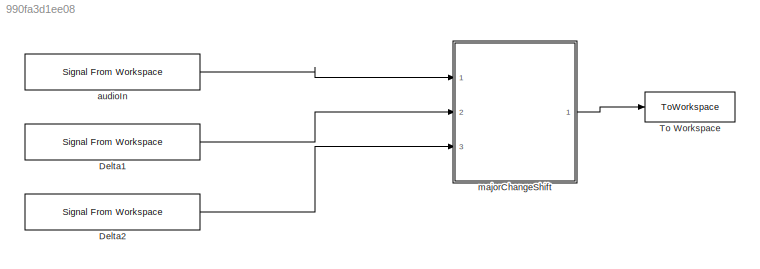
MODEL slx_990fa3d1ee08
KIND model
CONFIG AbsTol = auto
CONFIG EnableMultiTasking = off
CONFIG FixedStep = auto
CONFIG InitFcn = initCallback
CONFIG MaxStep = auto
CONFIG MinStep = auto
CONFIG PostLoadFcn = postLoadCallback
CONFIG RelTol = 1e-3
CONFIG SampleTimeConstraint = Unconstrained
CONFIG SolverName = VariableStepAuto
CONFIG StartTime = 0.0
CONFIG StopFcn = stopCallback
CONFIG StopTime = 10.0
BLOCK [Reference] Delta1  REF=dspsrcs4/Signal From
Workspace
  Ports = [0, 1]
  SourceBlock = dspsrcs4/Signal From\nWorkspace
  SourceProductBaseCode = DS
  SourceType = Signal From Workspace
BLOCK [Reference] Delta2  REF=dspsrcs4/Signal From
Workspace
  Ports = [0, 1]
  SourceBlock = dspsrcs4/Signal From\nWorkspace
  SourceProductBaseCode = DS
  SourceType = Signal From Workspace
BLOCK [ToWorkspace] To Workspace
  FixptAsFi = on
  MaxDataPoints = inf
  Ports = [1]
  SampleTime = modelParams.audio.samplePeriod
  Save2DSignal = 2-D array (concatenate along first dimension)
  VariableName = AudioOut
BLOCK [Reference] audioIn  REF=dspsrcs4/Signal From
Workspace
  Ports = [0, 1]
  SourceBlock = dspsrcs4/Signal From\nWorkspace
  SourceProductBaseCode = DS
  SourceType = Signal From Workspace
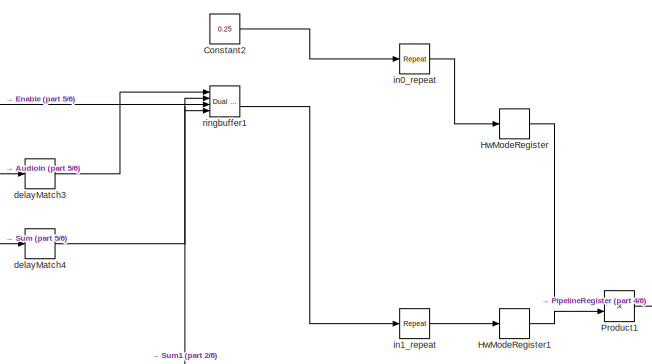
[diagram: majorChangeShift - part 1/6, top center region]
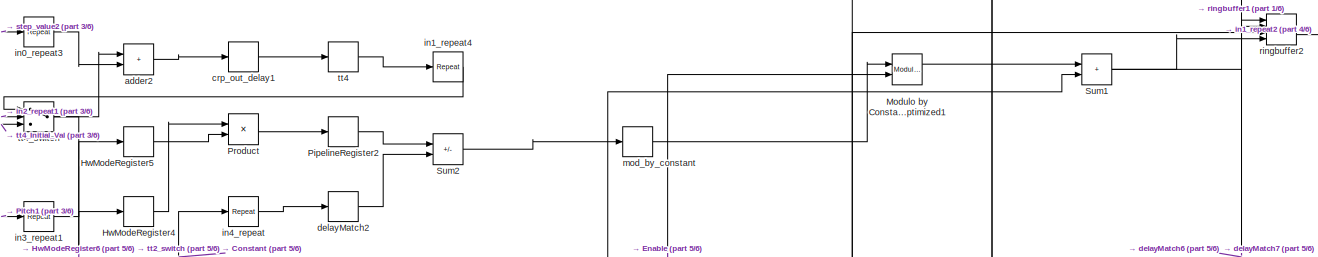
[diagram: majorChangeShift - part 2/6, central region]
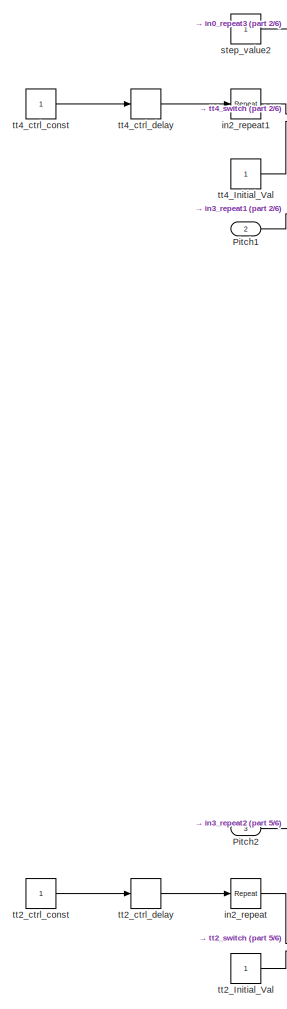
[diagram: majorChangeShift - part 3/6, middle left region]
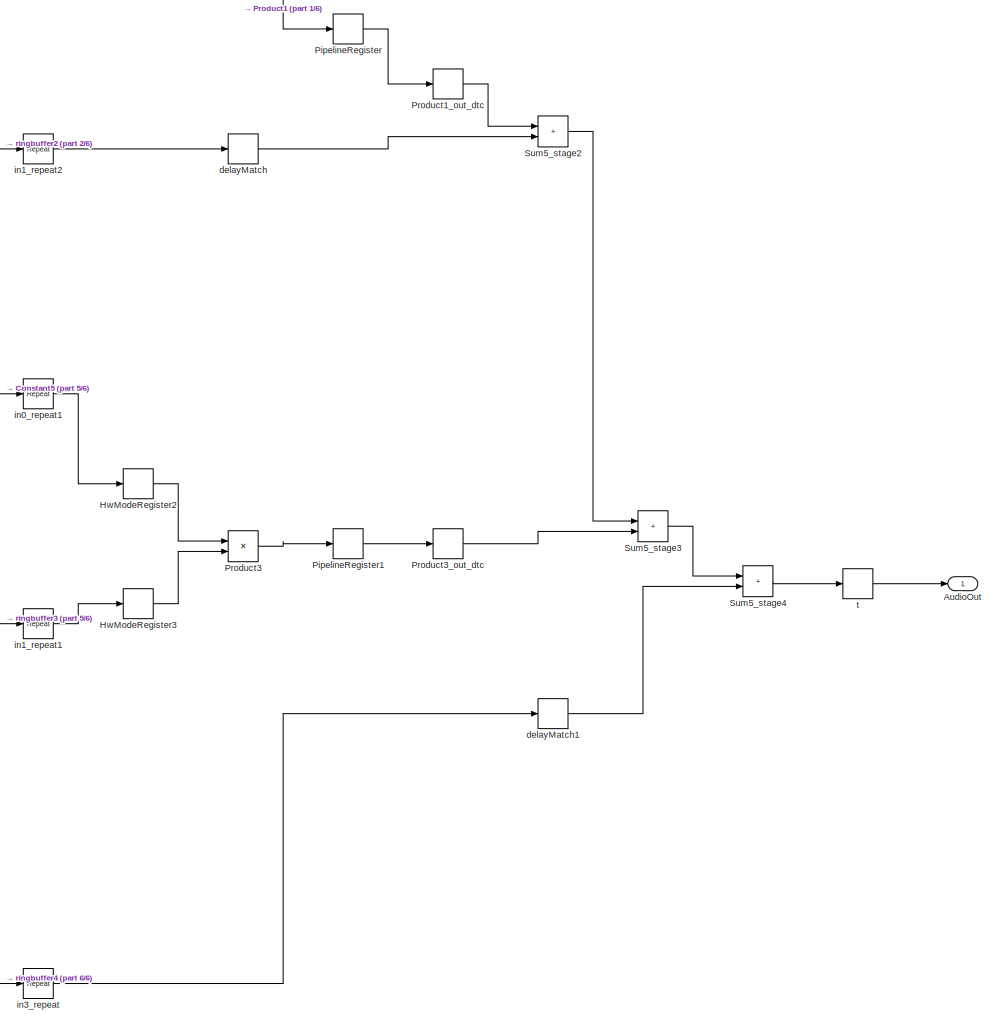
[diagram: majorChangeShift - part 4/6, middle right region]
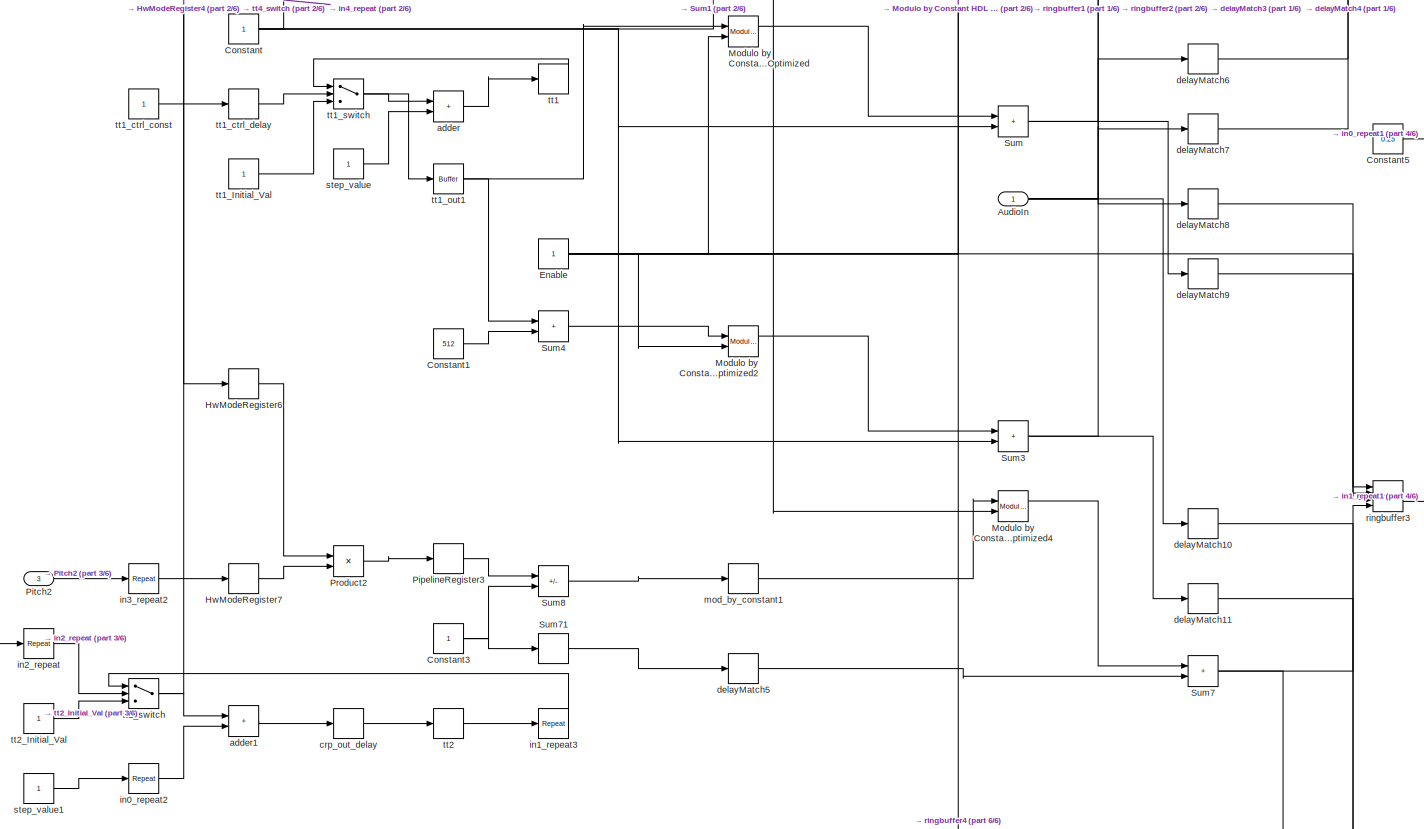
[diagram: majorChangeShift - part 5/6, bottom center region]
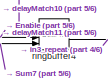
[diagram: majorChangeShift - part 6/6, bottom center region]
BLOCK [SubSystem] majorChangeShift
  Ports = [3, 1]
  RequestExecContextInheritance = off
BLOCK [Inport] majorChangeShift/AudioIn
  OutDataTypeStr = fixdt(1, 24, 23)
  PortDimensions = 1
  SampleTime = 2.08333333333333e-05
BLOCK [Outport] majorChangeShift/AudioOut
  SampleTime = 2.08333333333333e-05
BLOCK [Constant] majorChangeShift/Constant
  OutDataTypeStr = uint32
  SampleTime = 2.08333333333333e-05
BLOCK [Constant] majorChangeShift/Constant1
  OutDataTypeStr = uint32
  SampleTime = 2.08333333333333e-05
  Value = 512
BLOCK [Constant] majorChangeShift/Constant2
  OutDataTypeStr = fixdt(0, 24, 23)
  SampleTime = 2.08333333333333e-05
  Value = 0.25
BLOCK [Constant] majorChangeShift/Constant3
  OutDataTypeStr = uint32
  SampleTime = 1.01725260416667e-08
BLOCK [Constant] majorChangeShift/Constant5
  OutDataTypeStr = fixdt(0, 24, 23)
  SampleTime = 2.08333333333333e-05
  Value = 0.25
BLOCK [Constant] majorChangeShift/Enable
  OutDataTypeStr = boolean
  SampleTime = 2.08333333333333e-05
BLOCK [Delay] majorChangeShift/HwModeRegister
  DelayLength = double(1)
  InitialCondition = 0
  InputPortMap = u0
  Ports = [1, 1]
  SampleTime = 1.01725260416667e-08
BLOCK [Delay] majorChangeShift/HwModeRegister1
  DelayLength = double(1)
  InitialCondition = 0
  InputPortMap = u0
  Ports = [1, 1]
  SampleTime = 1.01725260416667e-08
BLOCK [Delay] majorChangeShift/HwModeRegister2
  DelayLength = double(1)
  InitialCondition = 0
  InputPortMap = u0
  Ports = [1, 1]
  SampleTime = 1.01725260416667e-08
BLOCK [Delay] majorChangeShift/HwModeRegister3
  DelayLength = double(1)
  InitialCondition = 0
  InputPortMap = u0
  Ports = [1, 1]
  SampleTime = 1.01725260416667e-08
BLOCK [Delay] majorChangeShift/HwModeRegister4
  DelayLength = double(1)
  InitialCondition = 0
  InputPortMap = u0
  Ports = [1, 1]
  SampleTime = 1.01725260416667e-08
BLOCK [Delay] majorChangeShift/HwModeRegister5
  DelayLength = double(1)
  InitialCondition = 0
  InputPortMap = u0
  Ports = [1, 1]
  SampleTime = 1.01725260416667e-08
BLOCK [Delay] majorChangeShift/HwModeRegister6
  DelayLength = double(1)
  InitialCondition = 0
  InputPortMap = u0
  Ports = [1, 1]
  SampleTime = 1.01725260416667e-08
BLOCK [Delay] majorChangeShift/HwModeRegister7
  DelayLength = double(1)
  InitialCondition = 0
  InputPortMap = u0
  Ports = [1, 1]
  SampleTime = 1.01725260416667e-08
BLOCK [Reference] majorChangeShift/Modulo by Constant HDL Optimized  REF=embmathops/Modulo by Constant
HDL Optimized
  Ports = [2, 2]
  SourceBlock = embmathops/Modulo by Constant\nHDL Optimized
  SourceProductBaseCode = SL
  SourceType = fixed.system.internal.modbyconstant_hdl
BLOCK [Reference] majorChangeShift/Modulo by Constant HDL Optimized1  REF=embmathops/Modulo by Constant
HDL Optimized
  Ports = [2, 2]
  SourceBlock = embmathops/Modulo by Constant\nHDL Optimized
  SourceProductBaseCode = SL
  SourceType = fixed.system.internal.modbyconstant_hdl
BLOCK [Reference] majorChangeShift/Modulo by Constant HDL Optimized2  REF=embmathops/Modulo by Constant
HDL Optimized
  Ports = [2, 2]
  SourceBlock = embmathops/Modulo by Constant\nHDL Optimized
  SourceProductBaseCode = SL
  SourceType = fixed.system.internal.modbyconstant_hdl
BLOCK [Reference] majorChangeShift/Modulo by Constant HDL Optimized4  REF=embmathops/Modulo by Constant
HDL Optimized
  Ports = [2, 2]
  SourceBlock = embmathops/Modulo by Constant\nHDL Optimized
  SourceProductBaseCode = SL
  SourceType = fixed.system.internal.modbyconstant_hdl
BLOCK [Delay] majorChangeShift/PipelineRegister
  DelayLength = double(1)
  InitialCondition = 0
  InputPortMap = u0
  Ports = [1, 1]
  SampleTime = 1.01725260416667e-08
BLOCK [Delay] majorChangeShift/PipelineRegister1
  DelayLength = double(1)
  InitialCondition = 0
  InputPortMap = u0
  Ports = [1, 1]
  SampleTime = 1.01725260416667e-08
BLOCK [Delay] majorChangeShift/PipelineRegister2
  DelayLength = double(1)
  InitialCondition = 0
  InputPortMap = u0
  Ports = [1, 1]
  SampleTime = 1.01725260416667e-08
BLOCK [Delay] majorChangeShift/PipelineRegister3
  DelayLength = double(1)
  InitialCondition = 0
  InputPortMap = u0
  Ports = [1, 1]
  SampleTime = 1.01725260416667e-08
BLOCK [Inport] majorChangeShift/Pitch1
  OutDataTypeStr = fixdt(1, 24, 23)
  Port = 2
  PortDimensions = 1
  SampleTime = 2.08333333333333e-05
BLOCK [Inport] majorChangeShift/Pitch2
  OutDataTypeStr = fixdt(1, 24, 23)
  Port = 3
  PortDimensions = 1
  SampleTime = 2.08333333333333e-05
BLOCK [Product] majorChangeShift/Product
  Inputs = **
  OutDataTypeStr = fixdt(1, 56, 23)
  Ports = [2, 1]
  SampleTime = 1.01725260416667e-08
BLOCK [Product] majorChangeShift/Product1
  Inputs = **
  OutDataTypeStr = fixdt(1, 48, 46)
  Ports = [2, 1]
  SampleTime = 1.01725260416667e-08
BLOCK [DataTypeConversion] majorChangeShift/Product1_out_dtc
  OutDataTypeStr = fixdt(1, 24, 23)
  RndMeth = Floor
  SampleTime = 1.01725260416667e-08
BLOCK [Product] majorChangeShift/Product2
  Inputs = **
  OutDataTypeStr = fixdt(1, 56, 23)
  Ports = [2, 1]
  SampleTime = 1.01725260416667e-08
BLOCK [Product] majorChangeShift/Product3
  Inputs = **
  OutDataTypeStr = fixdt(1, 48, 46)
  Ports = [2, 1]
  SampleTime = 1.01725260416667e-08
BLOCK [DataTypeConversion] majorChangeShift/Product3_out_dtc
  OutDataTypeStr = fixdt(1, 24, 23)
  RndMeth = Floor
  SampleTime = 1.01725260416667e-08
BLOCK [Sum] majorChangeShift/Sum
  AccumDataTypeStr = fixdt(0, 33, 0)
  IconShape = rectangular
  OutDataTypeStr = fixdt(0, 10, 0)
  Ports = [2, 1]
  SampleTime = 2.08333333333333e-05
BLOCK [Sum] majorChangeShift/Sum1
  AccumDataTypeStr = fixdt(0, 33, 0)
  IconShape = rectangular
  OutDataTypeStr = fixdt(0, 10, 0)
  Ports = [2, 1]
  SampleTime = 2.08333333333333e-05
BLOCK [Sum] majorChangeShift/Sum2
  AccumDataTypeStr = fixdt(1, 57, 23)
  IconShape = rectangular
  Inputs = +-
  OutDataTypeStr = fixdt(0, 10, 0)
  Ports = [2, 1]
  SampleTime = 1.01725260416667e-08
BLOCK [Sum] majorChangeShift/Sum3
  AccumDataTypeStr = fixdt(0, 33, 0)
  IconShape = rectangular
  OutDataTypeStr = fixdt(0, 10, 0)
  Ports = [2, 1]
  SampleTime = 2.08333333333333e-05
BLOCK [Sum] majorChangeShift/Sum4
  AccumDataTypeStr = fixdt(0, 33, 0)
  IconShape = rectangular
  OutDataTypeStr = fixdt(0, 10, 0)
  Ports = [2, 1]
  SampleTime = 2.08333333333333e-05
BLOCK [Sum] majorChangeShift/Sum5_stage2
  AccumDataTypeStr = fixdt(1, 26, 23)
  IconShape = rectangular
  OutDataTypeStr = fixdt(1, 25, 23)
  Ports = [2, 1]
  SampleTime = 1.01725260416667e-08
  SaturateOnIntegerOverflow = on
BLOCK [Sum] majorChangeShift/Sum5_stage3
  AccumDataTypeStr = fixdt(1, 26, 23)
  IconShape = rectangular
  OutDataTypeStr = fixdt(1, 26, 23)
  Ports = [2, 1]
  SampleTime = 1.01725260416667e-08
  SaturateOnIntegerOverflow = on
BLOCK [Sum] majorChangeShift/Sum5_stage4
  AccumDataTypeStr = fixdt(1, 26, 23)
  IconShape = rectangular
  OutDataTypeStr = fixdt(1, 24, 23)
  Ports = [2, 1]
  SampleTime = 1.01725260416667e-08
  SaturateOnIntegerOverflow = on
BLOCK [Sum] majorChangeShift/Sum7
  AccumDataTypeStr = fixdt(0, 33, 0)
  IconShape = rectangular
  OutDataTypeStr = fixdt(0, 10, 0)
  Ports = [2, 1]
  SampleTime = 2.08333333333333e-05
BLOCK [RateTransition] majorChangeShift/Sum71
  OutPortSampleTimeMultiple = 2048
  OutPortSampleTimeOpt = Multiple of input port sample time
BLOCK [Sum] majorChangeShift/Sum8
  AccumDataTypeStr = fixdt(1, 57, 23)
  IconShape = rectangular
  Inputs = +-
  OutDataTypeStr = fixdt(0, 10, 0)
  Ports = [2, 1]
  SampleTime = 1.01725260416667e-08
BLOCK [Sum] majorChangeShift/adder
  AccumDataTypeStr = fixdt(0, 10, 0)
  IconShape = rectangular
  OutDataTypeStr = fixdt(0, 10, 0)
  Ports = [2, 1]
  SampleTime = 2.08333333333333e-05
BLOCK [Sum] majorChangeShift/adder1
  AccumDataTypeStr = uint32
  IconShape = rectangular
  OutDataTypeStr = uint32
  Ports = [2, 1]
  SampleTime = 1.01725260416667e-08
BLOCK [Sum] majorChangeShift/adder2
  AccumDataTypeStr = uint32
  IconShape = rectangular
  OutDataTypeStr = uint32
  Ports = [2, 1]
  SampleTime = 1.01725260416667e-08
BLOCK [Delay] majorChangeShift/crp_out_delay
  DelayLength = double(1)
  InitialCondition = 0
  InputPortMap = u0
  Ports = [1, 1]
  SampleTime = 1.01725260416667e-08
BLOCK [Delay] majorChangeShift/crp_out_delay1
  DelayLength = double(1)
  InitialCondition = 0
  InputPortMap = u0
  Ports = [1, 1]
  SampleTime = 1.01725260416667e-08
BLOCK [Delay] majorChangeShift/delayMatch
  DelayLength = double(1)
  InitialCondition = 0
  InputPortMap = u0
  Ports = [1, 1]
  SampleTime = 1.01725260416667e-08
BLOCK [Delay] majorChangeShift/delayMatch1
  DelayLength = double(1)
  InitialCondition = 0
  InputPortMap = u0
  Ports = [1, 1]
  SampleTime = 1.01725260416667e-08
BLOCK [Delay] majorChangeShift/delayMatch10
  DelayLength = double(1)
  InitialCondition = 0
  InputPortMap = u0
  Ports = [1, 1]
  SampleTime = 2.08333333333333e-05
BLOCK [Delay] majorChangeShift/delayMatch11
  DelayLength = double(1)
  InitialCondition = 0
  InputPortMap = u0
  Ports = [1, 1]
  SampleTime = 2.08333333333333e-05
BLOCK [Delay] majorChangeShift/delayMatch2
  DelayLength = double(1)
  InitialCondition = 0
  InputPortMap = u0
  Ports = [1, 1]
  SampleTime = 1.01725260416667e-08
BLOCK [Delay] majorChangeShift/delayMatch3
  DelayLength = double(1)
  InitialCondition = 0
  InputPortMap = u0
  Ports = [1, 1]
  SampleTime = 2.08333333333333e-05
BLOCK [Delay] majorChangeShift/delayMatch4
  DelayLength = double(1)
  InitialCondition = 0
  InputPortMap = u0
  Ports = [1, 1]
  SampleTime = 2.08333333333333e-05
BLOCK [Delay] majorChangeShift/delayMatch5
  DelayLength = double(1)
  InitialCondition = 0
  InputPortMap = u0
  Ports = [1, 1]
  SampleTime = 2.08333333333333e-05
BLOCK [Delay] majorChangeShift/delayMatch6
  DelayLength = double(1)
  InitialCondition = 0
  InputPortMap = u0
  Ports = [1, 1]
  SampleTime = 2.08333333333333e-05
BLOCK [Delay] majorChangeShift/delayMatch7
  DelayLength = double(1)
  InitialCondition = 0
  InputPortMap = u0
  Ports = [1, 1]
  SampleTime = 2.08333333333333e-05
BLOCK [Delay] majorChangeShift/delayMatch8
  DelayLength = double(1)
  InitialCondition = 0
  InputPortMap = u0
  Ports = [1, 1]
  SampleTime = 2.08333333333333e-05
BLOCK [Delay] majorChangeShift/delayMatch9
  DelayLength = double(1)
  InitialCondition = 0
  InputPortMap = u0
  Ports = [1, 1]
  SampleTime = 2.08333333333333e-05
BLOCK [Reference] majorChangeShift/in0_repeat  REF=dspsigops/Repeat
  Ports = [1, 1]
  SourceBlock = dspsigops/Repeat
  SourceProductBaseCode = DS
  SourceType = Repeat
  UserDataPersistent = on
BLOCK [Reference] majorChangeShift/in0_repeat1  REF=dspsigops/Repeat
  Ports = [1, 1]
  SourceBlock = dspsigops/Repeat
  SourceProductBaseCode = DS
  SourceType = Repeat
  UserDataPersistent = on
BLOCK [Reference] majorChangeShift/in0_repeat2  REF=dspsigops/Repeat
  Ports = [1, 1]
  SourceBlock = dspsigops/Repeat
  SourceProductBaseCode = DS
  SourceType = Repeat
  UserDataPersistent = on
BLOCK [Reference] majorChangeShift/in0_repeat3  REF=dspsigops/Repeat
  Ports = [1, 1]
  SourceBlock = dspsigops/Repeat
  SourceProductBaseCode = DS
  SourceType = Repeat
  UserDataPersistent = on
BLOCK [Reference] majorChangeShift/in1_repeat  REF=dspsigops/Repeat
  Ports = [1, 1]
  SourceBlock = dspsigops/Repeat
  SourceProductBaseCode = DS
  SourceType = Repeat
  UserDataPersistent = on
BLOCK [Reference] majorChangeShift/in1_repeat1  REF=dspsigops/Repeat
  Ports = [1, 1]
  SourceBlock = dspsigops/Repeat
  SourceProductBaseCode = DS
  SourceType = Repeat
  UserDataPersistent = on
BLOCK [Reference] majorChangeShift/in1_repeat2  REF=dspsigops/Repeat
  Ports = [1, 1]
  SourceBlock = dspsigops/Repeat
  SourceProductBaseCode = DS
  SourceType = Repeat
  UserDataPersistent = on
BLOCK [Reference] majorChangeShift/in1_repeat3  REF=dspsigops/Repeat
  Ports = [1, 1]
  SourceBlock = dspsigops/Repeat
  SourceProductBaseCode = DS
  SourceType = Repeat
  UserDataPersistent = on
BLOCK [Reference] majorChangeShift/in1_repeat4  REF=dspsigops/Repeat
  Ports = [1, 1]
  SourceBlock = dspsigops/Repeat
  SourceProductBaseCode = DS
  SourceType = Repeat
  UserDataPersistent = on
BLOCK [Reference] majorChangeShift/in2_repeat  REF=dspsigops/Repeat
  Ports = [1, 1]
  SourceBlock = dspsigops/Repeat
  SourceProductBaseCode = DS
  SourceType = Repeat
  UserDataPersistent = on
BLOCK [Reference] majorChangeShift/in2_repeat1  REF=dspsigops/Repeat
  Ports = [1, 1]
  SourceBlock = dspsigops/Repeat
  SourceProductBaseCode = DS
  SourceType = Repeat
  UserDataPersistent = on
BLOCK [Reference] majorChangeShift/in3_repeat  REF=dspsigops/Repeat
  Ports = [1, 1]
  SourceBlock = dspsigops/Repeat
  SourceProductBaseCode = DS
  SourceType = Repeat
  UserDataPersistent = on
BLOCK [Reference] majorChangeShift/in3_repeat1  REF=dspsigops/Repeat
  Ports = [1, 1]
  SourceBlock = dspsigops/Repeat
  SourceProductBaseCode = DS
  SourceType = Repeat
  UserDataPersistent = on
BLOCK [Reference] majorChangeShift/in3_repeat2  REF=dspsigops/Repeat
  Ports = [1, 1]
  SourceBlock = dspsigops/Repeat
  SourceProductBaseCode = DS
  SourceType = Repeat
  UserDataPersistent = on
BLOCK [Reference] majorChangeShift/in4_repeat  REF=dspsigops/Repeat
  Ports = [1, 1]
  SourceBlock = dspsigops/Repeat
  SourceProductBaseCode = DS
  SourceType = Repeat
  UserDataPersistent = on
BLOCK [RateTransition] majorChangeShift/mod_by_constant
  OutPortSampleTimeMultiple = 2048
  OutPortSampleTimeOpt = Multiple of input port sample time
BLOCK [RateTransition] majorChangeShift/mod_by_constant1
  OutPortSampleTimeMultiple = 2048
  OutPortSampleTimeOpt = Multiple of input port sample time
BLOCK [Reference] majorChangeShift/ringbuffer1  REF=hdlsllib/HDL RAMs/Dual Port RAM
  Ports = [4, 2]
  SourceBlock = hdlsllib/HDL RAMs/Dual Port RAM
  SourceProductBaseCode = SL
  SourceType = Dual-port RAM
BLOCK [Reference] majorChangeShift/ringbuffer2  REF=hdlsllib/HDL RAMs/Dual Port RAM
  Ports = [4, 2]
  SourceBlock = hdlsllib/HDL RAMs/Dual Port RAM
  SourceProductBaseCode = SL
  SourceType = Dual-port RAM
BLOCK [Reference] majorChangeShift/ringbuffer3  REF=hdlsllib/HDL RAMs/Dual Port RAM
  Ports = [4, 2]
  SourceBlock = hdlsllib/HDL RAMs/Dual Port RAM
  SourceProductBaseCode = SL
  SourceType = Dual-port RAM
BLOCK [Reference] majorChangeShift/ringbuffer4  REF=hdlsllib/HDL RAMs/Dual Port RAM
  Ports = [4, 2]
  SourceBlock = hdlsllib/HDL RAMs/Dual Port RAM
  SourceProductBaseCode = SL
  SourceType = Dual-port RAM
BLOCK [Constant] majorChangeShift/step_value
  OutDataTypeStr = fixdt(0, 10, 0)
  SampleTime = 2.08333333333333e-05
  VectorParams1D = off
BLOCK [Constant] majorChangeShift/step_value1
  OutDataTypeStr = uint32
  SampleTime = 2.08333333333333e-05
  VectorParams1D = off
BLOCK [Constant] majorChangeShift/step_value2
  OutDataTypeStr = uint32
  SampleTime = 2.08333333333333e-05
  VectorParams1D = off
BLOCK [RateTransition] majorChangeShift/t
  OutPortSampleTimeMultiple = 2048
  OutPortSampleTimeOpt = Multiple of input port sample time
BLOCK [Delay] majorChangeShift/tt1
  DelayLength = double(1)
  InitialCondition = 0
  InputPortMap = u0
  Ports = [1, 1]
  SampleTime = 2.08333333333333e-05
BLOCK [Constant] majorChangeShift/tt1_Initial_Val
  OutDataTypeStr = fixdt(0, 10, 0)
  SampleTime = 2.08333333333333e-05
BLOCK [Constant] majorChangeShift/tt1_ctrl_const
  OutDataTypeStr = boolean
  SampleTime = 2.08333333333333e-05
BLOCK [Delay] majorChangeShift/tt1_ctrl_delay
  DelayLength = double(1)
  InitialCondition = 0
  InputPortMap = u0
  Ports = [1, 1]
  SampleTime = 2.08333333333333e-05
BLOCK [Reference] majorChangeShift/tt1_out1  REF=hdlmdlgenlib/Buffer
  Ports = [1, 1]
  SourceBlock = hdlmdlgenlib/Buffer
  SourceProductBaseCode = SL
  SourceType = Buffer/Wire
BLOCK [Switch] majorChangeShift/tt1_switch
  Criteria = u2 ~= 0
  InputSameDT = off
  OutDataTypeStr = fixdt(0, 10, 0)
  SampleTime = 2.08333333333333e-05
  SaturateOnIntegerOverflow = off
  Threshold = double(0)
BLOCK [RateTransition] majorChangeShift/tt2
  OutPortSampleTimeMultiple = 2048
  OutPortSampleTimeOpt = Multiple of input port sample time
BLOCK [Constant] majorChangeShift/tt2_Initial_Val
  OutDataTypeStr = uint32
  SampleTime = 1.01725260416667e-08
BLOCK [Constant] majorChangeShift/tt2_ctrl_const
  OutDataTypeStr = boolean
  SampleTime = 2.08333333333333e-05
BLOCK [Delay] majorChangeShift/tt2_ctrl_delay
  DelayLength = double(1)
  InitialCondition = 0
  InputPortMap = u0
  Ports = [1, 1]
  SampleTime = 2.08333333333333e-05
BLOCK [Switch] majorChangeShift/tt2_switch
  Criteria = u2 ~= 0
  InputSameDT = off
  OutDataTypeStr = uint32
  SampleTime = 1.01725260416667e-08
  SaturateOnIntegerOverflow = off
  Threshold = double(0)
BLOCK [RateTransition] majorChangeShift/tt4
  OutPortSampleTimeMultiple = 2048
  OutPortSampleTimeOpt = Multiple of input port sample time
BLOCK [Constant] majorChangeShift/tt4_Initial_Val
  OutDataTypeStr = uint32
  SampleTime = 1.01725260416667e-08
BLOCK [Constant] majorChangeShift/tt4_ctrl_const
  OutDataTypeStr = boolean
  SampleTime = 2.08333333333333e-05
BLOCK [Delay] majorChangeShift/tt4_ctrl_delay
  DelayLength = double(1)
  InitialCondition = 0
  InputPortMap = u0
  Ports = [1, 1]
  SampleTime = 2.08333333333333e-05
BLOCK [Switch] majorChangeShift/tt4_switch
  Criteria = u2 ~= 0
  InputSameDT = off
  OutDataTypeStr = uint32
  SampleTime = 1.01725260416667e-08
  SaturateOnIntegerOverflow = off
  Threshold = double(0)
LINE Delta1:1 -> majorChangeShift:2
LINE Delta2:1 -> majorChangeShift:3
LINE audioIn:1 -> majorChangeShift:1
NET majorChangeShift/AudioIn:1 -> majorChangeShift/delayMatch10:1, majorChangeShift/delayMatch3:1, majorChangeShift/delayMatch6:1, majorChangeShift/delayMatch8:1
LINE majorChangeShift/Constant1:1 -> majorChangeShift/Sum4:2
LINE majorChangeShift/Constant2:1 -> majorChangeShift/in0_repeat:1
NET majorChangeShift/Constant3:1 -> majorChangeShift/Sum71:1, majorChangeShift/Sum8:2
LINE majorChangeShift/Constant5:1 -> majorChangeShift/in0_repeat1:1
NET majorChangeShift/Constant:1 -> majorChangeShift/Sum1:2, majorChangeShift/Sum3:2, majorChangeShift/Sum:2, majorChangeShift/in4_repeat:1
NET majorChangeShift/Enable:1 -> majorChangeShift/Modulo by Constant HDL Optimized1:2, majorChangeShift/Modulo by Constant HDL Optimized2:2, majorChangeShift/Modulo by Constant HDL Optimized4:2, majorChangeShift/Modulo by Constant HDL Optimized:2, majorChangeShift/ringbuffer1:3, majorChangeShift/ringbuffer2:3, majorChangeShift/ringbuffer3:3, majorChangeShift/ringbuffer4:3
LINE majorChangeShift/HwModeRegister1:1 -> majorChangeShift/Product1:2
LINE majorChangeShift/HwModeRegister2:1 -> majorChangeShift/Product3:1
LINE majorChangeShift/HwModeRegister3:1 -> majorChangeShift/Product3:2
LINE majorChangeShift/HwModeRegister4:1 -> majorChangeShift/Product:1
LINE majorChangeShift/HwModeRegister5:1 -> majorChangeShift/Product:2
LINE majorChangeShift/HwModeRegister6:1 -> majorChangeShift/Product2:1
LINE majorChangeShift/HwModeRegister7:1 -> majorChangeShift/Product2:2
LINE majorChangeShift/HwModeRegister:1 -> majorChangeShift/Product1:1
LINE majorChangeShift/Modulo by Constant HDL Optimized1:1 -> majorChangeShift/Sum1:1
LINE majorChangeShift/Modulo by Constant HDL Optimized2:1 -> majorChangeShift/Sum3:1
LINE majorChangeShift/Modulo by Constant HDL Optimized4:1 -> majorChangeShift/Sum7:1
LINE majorChangeShift/Modulo by Constant HDL Optimized:1 -> majorChangeShift/Sum:1
LINE majorChangeShift/PipelineRegister1:1 -> majorChangeShift/Product3_out_dtc:1
LINE majorChangeShift/PipelineRegister2:1 -> majorChangeShift/Sum2:1
LINE majorChangeShift/PipelineRegister3:1 -> majorChangeShift/Sum8:1
LINE majorChangeShift/PipelineRegister:1 -> majorChangeShift/Product1_out_dtc:1
LINE majorChangeShift/Pitch1:1 -> majorChangeShift/in3_repeat1:1
LINE majorChangeShift/Pitch2:1 -> majorChangeShift/in3_repeat2:1
LINE majorChangeShift/Product1:1 -> majorChangeShift/PipelineRegister:1
LINE majorChangeShift/Product1_out_dtc:1 -> majorChangeShift/Sum5_stage2:1
LINE majorChangeShift/Product2:1 -> majorChangeShift/PipelineRegister3:1
LINE majorChangeShift/Product3:1 -> majorChangeShift/PipelineRegister1:1
LINE majorChangeShift/Product3_out_dtc:1 -> majorChangeShift/Sum5_stage3:2
LINE majorChangeShift/Product:1 -> majorChangeShift/PipelineRegister2:1
NET majorChangeShift/Sum1:1 -> majorChangeShift/ringbuffer1:4, majorChangeShift/ringbuffer2:4
LINE majorChangeShift/Sum2:1 -> majorChangeShift/mod_by_constant:1
NET majorChangeShift/Sum3:1 -> majorChangeShift/delayMatch11:1, majorChangeShift/delayMatch7:1
LINE majorChangeShift/Sum4:1 -> majorChangeShift/Modulo by Constant HDL Optimized2:1
LINE majorChangeShift/Sum5_stage2:1 -> majorChangeShift/Sum5_stage3:1
LINE majorChangeShift/Sum5_stage3:1 -> majorChangeShift/Sum5_stage4:1
LINE majorChangeShift/Sum5_stage4:1 -> majorChangeShift/t:1
LINE majorChangeShift/Sum71:1 -> majorChangeShift/delayMatch5:1
NET majorChangeShift/Sum7:1 -> majorChangeShift/ringbuffer3:4, majorChangeShift/ringbuffer4:4
LINE majorChangeShift/Sum8:1 -> majorChangeShift/mod_by_constant1:1
NET majorChangeShift/Sum:1 -> majorChangeShift/delayMatch4:1, majorChangeShift/delayMatch9:1
LINE majorChangeShift/adder1:1 -> majorChangeShift/crp_out_delay:1
LINE majorChangeShift/adder2:1 -> majorChangeShift/crp_out_delay1:1
LINE majorChangeShift/adder:1 -> majorChangeShift/tt1:1
LINE majorChangeShift/crp_out_delay1:1 -> majorChangeShift/tt4:1
LINE majorChangeShift/crp_out_delay:1 -> majorChangeShift/tt2:1
LINE majorChangeShift/delayMatch10:1 -> majorChangeShift/ringbuffer4:1
LINE majorChangeShift/delayMatch11:1 -> majorChangeShift/ringbuffer4:2
LINE majorChangeShift/delayMatch1:1 -> majorChangeShift/Sum5_stage4:2
LINE majorChangeShift/delayMatch2:1 -> majorChangeShift/Sum2:2
LINE majorChangeShift/delayMatch3:1 -> majorChangeShift/ringbuffer1:1
LINE majorChangeShift/delayMatch4:1 -> majorChangeShift/ringbuffer1:2
LINE majorChangeShift/delayMatch5:1 -> majorChangeShift/Sum7:2
LINE majorChangeShift/delayMatch6:1 -> majorChangeShift/ringbuffer2:1
LINE majorChangeShift/delayMatch7:1 -> majorChangeShift/ringbuffer2:2
LINE majorChangeShift/delayMatch8:1 -> majorChangeShift/ringbuffer3:1
LINE majorChangeShift/delayMatch9:1 -> majorChangeShift/ringbuffer3:2
LINE majorChangeShift/delayMatch:1 -> majorChangeShift/Sum5_stage2:2
LINE majorChangeShift/in0_repeat1:1 -> majorChangeShift/HwModeRegister2:1
LINE majorChangeShift/in0_repeat2:1 -> majorChangeShift/adder1:2
LINE majorChangeShift/in0_repeat3:1 -> majorChangeShift/adder2:2
LINE majorChangeShift/in0_repeat:1 -> majorChangeShift/HwModeRegister:1
LINE majorChangeShift/in1_repeat1:1 -> majorChangeShift/HwModeRegister3:1
LINE majorChangeShift/in1_repeat2:1 -> majorChangeShift/delayMatch:1
LINE majorChangeShift/in1_repeat3:1 -> majorChangeShift/tt2_switch:1
LINE majorChangeShift/in1_repeat4:1 -> majorChangeShift/tt4_switch:1
LINE majorChangeShift/in1_repeat:1 -> majorChangeShift/HwModeRegister1:1
LINE majorChangeShift/in2_repeat1:1 -> majorChangeShift/tt4_switch:2
LINE majorChangeShift/in2_repeat:1 -> majorChangeShift/tt2_switch:2
LINE majorChangeShift/in3_repeat1:1 -> majorChangeShift/HwModeRegister5:1
LINE majorChangeShift/in3_repeat2:1 -> majorChangeShift/HwModeRegister7:1
LINE majorChangeShift/in3_repeat:1 -> majorChangeShift/delayMatch1:1
LINE majorChangeShift/in4_repeat:1 -> majorChangeShift/delayMatch2:1
LINE majorChangeShift/mod_by_constant1:1 -> majorChangeShift/Modulo by Constant HDL Optimized4:1
LINE majorChangeShift/mod_by_constant:1 -> majorChangeShift/Modulo by Constant HDL Optimized1:1
LINE majorChangeShift/ringbuffer1:2 -> majorChangeShift/in1_repeat:1
LINE majorChangeShift/ringbuffer2:2 -> majorChangeShift/in1_repeat2:1
LINE majorChangeShift/ringbuffer3:2 -> majorChangeShift/in1_repeat1:1
LINE majorChangeShift/ringbuffer4:2 -> majorChangeShift/in3_repeat:1
LINE majorChangeShift/step_value1:1 -> majorChangeShift/in0_repeat2:1
LINE majorChangeShift/step_value2:1 -> majorChangeShift/in0_repeat3:1
LINE majorChangeShift/step_value:1 -> majorChangeShift/adder:2
LINE majorChangeShift/t:1 -> majorChangeShift/AudioOut:1
LINE majorChangeShift/tt1:1 -> majorChangeShift/tt1_switch:1
LINE majorChangeShift/tt1_Initial_Val:1 -> majorChangeShift/tt1_switch:3
LINE majorChangeShift/tt1_ctrl_const:1 -> majorChangeShift/tt1_ctrl_delay:1
LINE majorChangeShift/tt1_ctrl_delay:1 -> majorChangeShift/tt1_switch:2
NET majorChangeShift/tt1_out1:1 -> majorChangeShift/Modulo by Constant HDL Optimized:1, majorChangeShift/Sum4:1
NET majorChangeShift/tt1_switch:1 -> majorChangeShift/adder:1, majorChangeShift/tt1_out1:1
LINE majorChangeShift/tt2:1 -> majorChangeShift/in1_repeat3:1
LINE majorChangeShift/tt2_Initial_Val:1 -> majorChangeShift/tt2_switch:3
LINE majorChangeShift/tt2_ctrl_const:1 -> majorChangeShift/tt2_ctrl_delay:1
LINE majorChangeShift/tt2_ctrl_delay:1 -> majorChangeShift/in2_repeat:1
NET majorChangeShift/tt2_switch:1 -> majorChangeShift/HwModeRegister4:1, majorChangeShift/adder1:1
LINE majorChangeShift/tt4:1 -> majorChangeShift/in1_repeat4:1
LINE majorChangeShift/tt4_Initial_Val:1 -> majorChangeShift/tt4_switch:3
LINE majorChangeShift/tt4_ctrl_const:1 -> majorChangeShift/tt4_ctrl_delay:1
LINE majorChangeShift/tt4_ctrl_delay:1 -> majorChangeShift/in2_repeat1:1
NET majorChangeShift/tt4_switch:1 -> majorChangeShift/HwModeRegister6:1, majorChangeShift/adder2:1
LINE majorChangeShift:1 -> To Workspace:1
note: NET lines group one-source signal fan-out (src -> all destinations, sorted); 1:1 wires keep LINE
